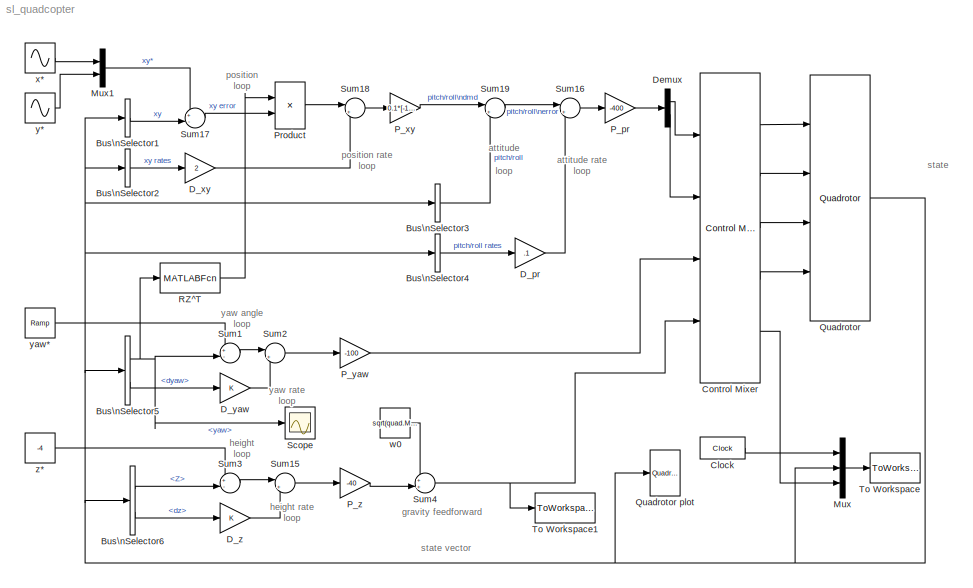
MODEL sl_quadcopter
KIND model
CONFIG InitFcn = % load parameters of the default quadrotor\ndisp('Quadrotor parameters loaded by InitFcn')\nmdl_quadcopter
BLOCK [BusSelector] Bus\nSelector1
  OutputAsBus = on
  OutputSignals = X,Y
  Ports = [1, 1]
  SID = 1
BLOCK [BusSelector] Bus\nSelector2
  OutputAsBus = on
  OutputSignals = dx,dy
  Ports = [1, 1]
  SID = 2
BLOCK [BusSelector] Bus\nSelector3
  OutputAsBus = on
  OutputSignals = pitch,roll
  Ports = [1, 1]
  SID = 3
BLOCK [BusSelector] Bus\nSelector4
  OutputAsBus = on
  OutputSignals = dpitch,droll
  Ports = [1, 1]
  SID = 4
BLOCK [BusSelector] Bus\nSelector5
  OutputSignals = yaw,dyaw
  Ports = [1, 2]
  SID = 5
BLOCK [BusSelector] Bus\nSelector6
  OutputSignals = Z,dz
  Ports = [1, 2]
  SID = 6
BLOCK [Clock] Clock
  DisplayTime = on
  SID = 70
BLOCK [Reference] Control Mixer  REF=roblocks/Dynamics/Control Mixer  (lib defined in mdl_2a292b13c81b, mdl_69400f8cfe22, +12 more)
  Ports = [4, 5]
  SID = 93
  SourceBlock = roblocks/Dynamics/Control Mixer
BLOCK [Gain] D_pr
  Gain = .1
  OutDataTypeStr = Inherit: Inherit via internal rule
  ParamDataTypeStr = Inherit: Inherit via internal rule
  SID = 28
  SaturateOnIntegerOverflow = off
BLOCK [Gain] D_xy
  Gain = 2
  OutDataTypeStr = Inherit: Inherit via internal rule
  ParamDataTypeStr = Inherit: Inherit via internal rule
  SID = 29
  SaturateOnIntegerOverflow = off
BLOCK [Gain] D_yaw
  OutDataTypeStr = Inherit: Inherit via internal rule
  ParamDataTypeStr = Inherit: Inherit via internal rule
  SID = 30
  SaturateOnIntegerOverflow = off
BLOCK [Gain] D_z
  OutDataTypeStr = Inherit: Inherit via internal rule
  ParamDataTypeStr = Inherit: Inherit via internal rule
  SID = 31
  SaturateOnIntegerOverflow = off
BLOCK [Demux] Demux
  DisplayOption = bar
  Outputs = 2
  Ports = [1, 2]
  SID = 32
BLOCK [Mux] Mux
  DisplayOption = bar
  Inputs = 3
  Ports = [3, 1]
  SID = 71
BLOCK [Mux] Mux1
  DisplayOption = bar
  Inputs = 2
  Ports = [2, 1]
  SID = 35
BLOCK [Gain] P_pr
  Gain = -400
  OutDataTypeStr = Inherit: Inherit via internal rule
  ParamDataTypeStr = Inherit: Inherit via internal rule
  SID = 36
  SaturateOnIntegerOverflow = off
BLOCK [Gain] P_xy
  Gain = 0.1*[-1, 1]
  OutDataTypeStr = Inherit: Inherit via internal rule
  ParamDataTypeStr = Inherit: Inherit via internal rule
  SID = 37
  SaturateOnIntegerOverflow = off
BLOCK [Gain] P_yaw
  Gain = -100
  OutDataTypeStr = Inherit: Inherit via internal rule
  ParamDataTypeStr = Inherit: Inherit via internal rule
  SID = 38
  SaturateOnIntegerOverflow = off
BLOCK [Gain] P_z
  Gain = -40
  OutDataTypeStr = Inherit: Inherit via internal rule
  ParamDataTypeStr = Inherit: Inherit via internal rule
  SID = 39
  SaturateOnIntegerOverflow = off
BLOCK [Product] Product
  InputSameDT = off
  Multiplication = Matrix(*)
  OutDataTypeStr = Inherit: Inherit via internal rule
  Ports = [2, 1]
  SID = 89
  SaturateOnIntegerOverflow = off
BLOCK [Reference] Quadrotor  REF=roblocks/Dynamics/Quadrotor  (lib defined in mdl_2a292b13c81b, mdl_69400f8cfe22, +12 more)
  Ports = [4, 1]
  SID = 85
  SourceBlock = roblocks/Dynamics/Quadrotor
  quad = quad
BLOCK [Reference] Quadrotor plot  REF=roblocks/Robot Graphics/Quadrotor plot  (lib defined in mdl_2a292b13c81b, mdl_69400f8cfe22, +12 more)
  Ports = [1]
  SID = 91
  SourceBlock = roblocks/Robot Graphics/Quadrotor plot
  x = 0
BLOCK [MATLABFcn] RZ^T
  MATLABFcn = inv([cos(u) -sin(u); sin(u) cos(u)])
  Output1D = off
  OutputDimensions = [2 2]
  Ports = [1, 1]
  SID = 78
BLOCK [Scope] Scope
  DataFormat = StructureWithTime
  Floating = off
  NumInputPorts = 1
  Ports = [1]
  SID = 79
  SampleTime = 0
  ShowLegends = off
  YMax = 0.045
  YMin = -0.04
BLOCK [Sum] Sum1
  IconShape = round
  InputSameDT = off
  Inputs = +-|
  OutDataTypeStr = Inherit: Inherit via internal rule
  Ports = [2, 1]
  SID = 54
  SaturateOnIntegerOverflow = off
BLOCK [Sum] Sum15
  IconShape = round
  InputSameDT = off
  Inputs = |+-
  OutDataTypeStr = Inherit: Inherit via internal rule
  Ports = [2, 1]
  SID = 55
  SaturateOnIntegerOverflow = off
BLOCK [Sum] Sum16
  IconShape = round
  InputSameDT = off
  Inputs = |+-
  OutDataTypeStr = Inherit: Inherit via internal rule
  Ports = [2, 1]
  SID = 56
  SaturateOnIntegerOverflow = off
BLOCK [Sum] Sum17
  IconShape = round
  InputSameDT = off
  Inputs = +-|
  OutDataTypeStr = Inherit: Inherit via internal rule
  Ports = [2, 1]
  SID = 57
  SaturateOnIntegerOverflow = off
BLOCK [Sum] Sum18
  IconShape = round
  InputSameDT = off
  Inputs = |+-
  OutDataTypeStr = Inherit: Inherit via internal rule
  Ports = [2, 1]
  SID = 58
  SaturateOnIntegerOverflow = off
BLOCK [Sum] Sum19
  IconShape = round
  InputSameDT = off
  Inputs = |+-
  OutDataTypeStr = Inherit: Inherit via internal rule
  Ports = [2, 1]
  SID = 59
  SaturateOnIntegerOverflow = off
BLOCK [Sum] Sum2
  IconShape = round
  InputSameDT = off
  Inputs = |+-
  OutDataTypeStr = Inherit: Inherit via internal rule
  Ports = [2, 1]
  SID = 60
  SaturateOnIntegerOverflow = off
BLOCK [Sum] Sum3
  IconShape = round
  InputSameDT = off
  Inputs = +-|
  OutDataTypeStr = Inherit: Inherit via internal rule
  Ports = [2, 1]
  SID = 61
  SaturateOnIntegerOverflow = off
BLOCK [Sum] Sum4
  IconShape = round
  InputSameDT = off
  Inputs = ++|
  OutDataTypeStr = Inherit: Inherit via internal rule
  Ports = [2, 1]
  SID = 62
  SaturateOnIntegerOverflow = off
BLOCK [ToWorkspace] To Workspace
  MaxDataPoints = inf
  Ports = [1]
  SID = 69
  SampleTime = -1
  VariableName = result
BLOCK [ToWorkspace] To Workspace1
  MaxDataPoints = inf
  Ports = [1]
  SID = 72
  SampleTime = -1
  VariableName = T
BLOCK [Constant] w0
  SID = 63
  SampleTime = 0
  Value = sqrt(quad.M*quad.g/4/quad.b)
BLOCK [Sin] x*
  Frequency = 2*pi*.125
  Phase = -pi/2
  Ports = [0, 1]
  SID = 64
  SampleTime = 0
BLOCK [Sin] y*
  Frequency = 2*pi*.125
  Ports = [0, 1]
  SID = 65
  SampleTime = 0
BLOCK [Reference] yaw*  REF=simulink/Sources/Ramp
  Ports = [0, 1]
  SID = 84
  SourceBlock = simulink/Sources/Ramp
  SourceType = Ramp
  VectorParams1D = on
  X0 = 0
  slope = 0.2
  start = 2
BLOCK [Constant] z*
  SID = 68
  SampleTime = 0
  Value = -4
ANNOTATION (root): attitude rate\nloop
ANNOTATION (root): attitude\nloop
ANNOTATION (root): gravity feedforward
ANNOTATION (root): height \nloop
ANNOTATION (root): height rate\nloop
ANNOTATION (root): position rate\nloop
ANNOTATION (root): position\nloop
ANNOTATION (root): state
ANNOTATION (root): state vector
ANNOTATION (root): yaw angle\nloop
ANNOTATION (root): yaw rate\nloop
LINE Bus\nSelector1:1 -> Sum17:2
LINE Bus\nSelector2:1 -> D_xy:1
LINE Bus\nSelector3:1 -> Sum19:2
LINE Bus\nSelector4:1 -> D_pr:1
NET Bus\nSelector5:1 -> RZ^T:1, Scope:1, Sum1:2
LINE Bus\nSelector5:2 -> D_yaw:1
LINE Bus\nSelector6:1 -> Sum3:2
LINE Bus\nSelector6:2 -> D_z:1
LINE Clock:1 -> Mux:1
LINE Control Mixer:1 -> Quadrotor:1
LINE Control Mixer:2 -> Quadrotor:2
LINE Control Mixer:3 -> Quadrotor:3
LINE Control Mixer:4 -> Quadrotor:4
LINE Control Mixer:5 -> Mux:3
LINE D_pr:1 -> Sum16:2
LINE D_xy:1 -> Sum18:2
LINE D_yaw:1 -> Sum2:2
LINE D_z:1 -> Sum15:2
LINE Demux:1 -> Control Mixer:1
LINE Demux:2 -> Control Mixer:2
LINE Mux1:1 -> Sum17:1
LINE Mux:1 -> To Workspace:1
LINE P_pr:1 -> Demux:1
LINE P_xy:1 -> Sum19:1
LINE P_yaw:1 -> Control Mixer:3
LINE P_z:1 -> Sum4:2
LINE Product:1 -> Sum18:1
NET Quadrotor:1 -> Bus\nSelector1:1, Bus\nSelector2:1, Bus\nSelector3:1, Bus\nSelector4:1, Bus\nSelector5:1, Bus\nSelector6:1, Mux:2, Quadrotor plot:1
LINE RZ^T:1 -> Product:1
LINE Sum15:1 -> P_z:1
LINE Sum16:1 -> P_pr:1
LINE Sum17:1 -> Product:2
LINE Sum18:1 -> P_xy:1
LINE Sum19:1 -> Sum16:1
LINE Sum1:1 -> Sum2:1
LINE Sum2:1 -> P_yaw:1
LINE Sum3:1 -> Sum15:1
NET Sum4:1 -> Control Mixer:4, To Workspace1:1
LINE w0:1 -> Sum4:1
LINE x*:1 -> Mux1:1
LINE y*:1 -> Mux1:2
LINE yaw*:1 -> Sum1:1
LINE z*:1 -> Sum3:1
note: NET lines group one-source signal fan-out (src -> all destinations, sorted); 1:1 wires keep LINE
